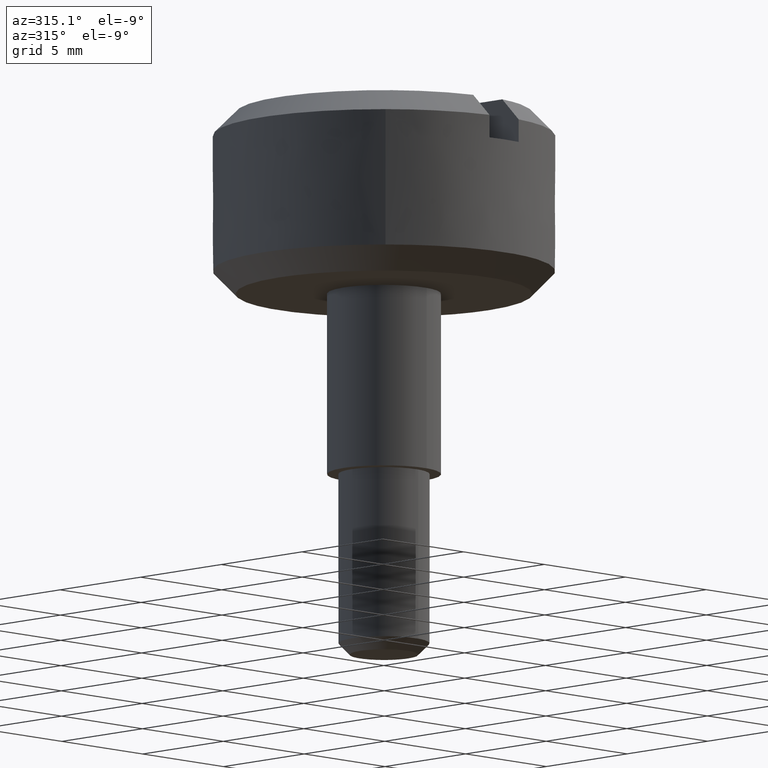
[diagram: clean part render]
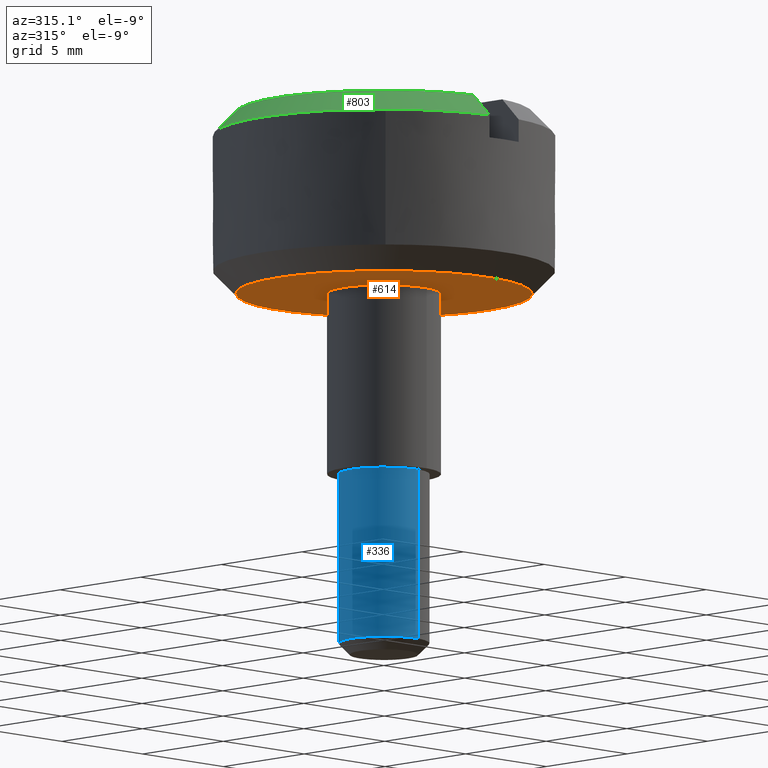
[diagram: same view with three faces highlighted in distinct colors, each labeled with its STEP entity id]
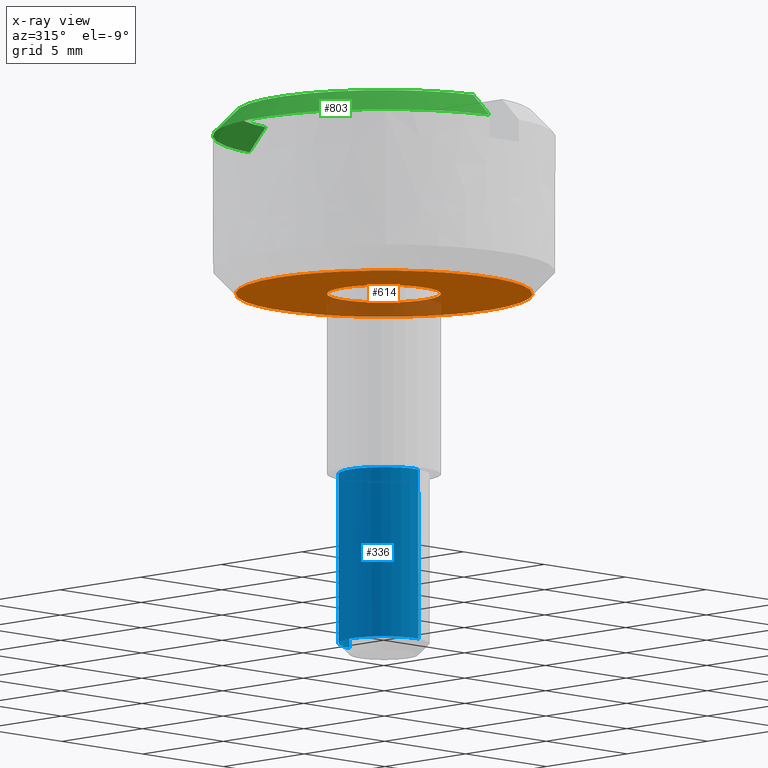
[diagram: x-ray of the same camera — body ghosted, the three highlighted faces saturated]
A machine part, auxiliary view with three faces highlighted in distinct colors.
The next image is the same camera in x-ray (body ghosted, the three faces saturated) — at least one of them is partly hidden behind the body in this view.
Their STEP definitions:

[orange] entity #614 — the highlighted face is a freeform B-spline surface patch.
#433=CARTESIAN_POINT('',(-0.152621348860034,2.495336996053319,-8.420209E-013));
#434=VERTEX_POINT('',#433);
#435=CARTESIAN_POINT('',(2.500000000000029,0.0,0.0));
#436=VERTEX_POINT('',#435);
#437=CARTESIAN_POINT('',(-0.152621348860034,2.495336996053319,-8.420209E-013));
#438=CARTESIAN_POINT('',(-0.076381908257961,2.500000000000051,-8.299206E-013));
#439=CARTESIAN_POINT('',(-2.126242E-014,2.500000000000050,-8.170575E-013));
#440=CARTESIAN_POINT('',(2.500000000000028,2.500000000000050,-3.960471E-013));
#441=CARTESIAN_POINT('',(2.500000000000029,0.0,0.0));
#449=(BOUNDED_CURVE()B_SPLINE_CURVE(2,(#437,#438,#439,#440,#441),.UNSPECIFIED.,.F.,.U.)B_SPLINE_CURVE_WITH_KNOTS((3,2,3),(0.239332962240387,0.250000000000000,0.500000000000000),.UNSPECIFIED.)CURVE()GEOMETRIC_REPRESENTATION_ITEM()RATIONAL_B_SPLINE_CURVE((0.976072041669813,0.987502787901529,1.0,0.707106781186548,1.0))REPRESENTATION_ITEM(''));
#450=EDGE_CURVE('',#434,#436,#449,.T.);
#452=CARTESIAN_POINT('',(0.152621348859991,-2.495336996053318,-8.403058E-013));
#453=VERTEX_POINT('',#452);
#454=CARTESIAN_POINT('',(2.500000000000029,0.0,0.0));
#455=CARTESIAN_POINT('',(2.500000000000029,-2.351765167242692,-7.920681E-013));
#456=CARTESIAN_POINT('',(0.152621348859992,-2.495336996053319,-8.404227E-013));
#464=(BOUNDED_CURVE()B_SPLINE_CURVE(2,(#454,#455,#456),.UNSPECIFIED.,.F.,.U.)B_SPLINE_CURVE_WITH_KNOTS((3,3),(0.500000000000000,0.739332962240387),.UNSPECIFIED.)CURVE()GEOMETRIC_REPRESENTATION_ITEM()RATIONAL_B_SPLINE_CURVE((1.0,0.719603993285018,0.976072041669813))REPRESENTATION_ITEM(''));
#465=EDGE_CURVE('',#436,#453,#464,.T.);
#500=CARTESIAN_POINT('',(-2.500000000000071,0.0,-8.419931E-013));
#501=VERTEX_POINT('',#500);
#502=CARTESIAN_POINT('',(-2.500000000000071,0.0,-8.419931E-013));
#503=CARTESIAN_POINT('',(-2.500000000000072,2.351765167242692,-8.419931E-013));
#504=CARTESIAN_POINT('',(-0.152621348860034,2.495336996053318,-8.419931E-013));
#512=(BOUNDED_CURVE()B_SPLINE_CURVE(2,(#502,#503,#504),.UNSPECIFIED.,.F.,.U.)B_SPLINE_CURVE_WITH_KNOTS((3,3),(0.0,0.239332962240387),.UNSPECIFIED.)CURVE()GEOMETRIC_REPRESENTATION_ITEM()RATIONAL_B_SPLINE_CURVE((1.0,0.719603993285018,0.976072041669813))REPRESENTATION_ITEM(''));
#513=EDGE_CURVE('',#501,#434,#512,.T.);
#519=CARTESIAN_POINT('',(0.152621348859992,-2.495336996053319,-8.404227E-013));
#520=CARTESIAN_POINT('',(0.076381908257919,-2.500000000000049,-8.419931E-013));
#521=CARTESIAN_POINT('',(-2.131628E-014,-2.500000000000050,-8.419931E-013));
#522=CARTESIAN_POINT('',(-2.500000000000071,-2.500000000000050,-8.419931E-013));
#523=CARTESIAN_POINT('',(-2.500000000000071,0.0,-8.419931E-013));
#531=(BOUNDED_CURVE()B_SPLINE_CURVE(2,(#519,#520,#521,#522,#523),.UNSPECIFIED.,.F.,.U.)B_SPLINE_CURVE_WITH_KNOTS((3,2,3),(0.739332962240387,0.750000000000000,1.0),.UNSPECIFIED.)CURVE()GEOMETRIC_REPRESENTATION_ITEM()RATIONAL_B_SPLINE_CURVE((0.976072041669813,0.987502787901529,1.0,0.707106781186548,1.0))REPRESENTATION_ITEM(''));
#532=EDGE_CURVE('',#453,#501,#531,.T.);
#537=CARTESIAN_POINT('',(7.149349974803454,-7.147365892724535,-1.515232E-012));
#538=CARTESIAN_POINT('',(-7.149350323490671,-7.147365892724535,-1.515232E-012));
#539=CARTESIAN_POINT('',(7.149349974803454,7.147366241411707,-1.515232E-012));
#540=CARTESIAN_POINT('',(-7.149350323490671,7.147366241411707,-1.515232E-012));
#541=B_SPLINE_SURFACE_WITH_KNOTS('',1,1,((#537,#539),(#538,#540)),.UNSPECIFIED.,.F.,.F.,.U.,(2,2),(2,2),(0.0,14.298700298294129),(0.0,14.294732134136240),.UNSPECIFIED.);
#542=CARTESIAN_POINT('',(-6.500000000000021,0.0,-2.188472E-012));
#543=VERTEX_POINT('',#542);
#544=CARTESIAN_POINT('',(-0.509984122261655,6.479962669266916,1.796362E-012));
#545=VERTEX_POINT('',#544);
#546=CARTESIAN_POINT('',(-6.500000000000021,0.0,-2.188472E-012));
#547=CARTESIAN_POINT('',(-6.500000000000178,6.008538195752123,-1.960550E-013));
#548=CARTESIAN_POINT('',(-0.509984122261655,6.479962669266916,1.796362E-012));
#556=(BOUNDED_CURVE()B_SPLINE_CURVE(2,(#546,#547,#548),.UNSPECIFIED.,.F.,.U.)B_SPLINE_CURVE_WITH_KNOTS((3,3),(0.0,0.236331300631965),.UNSPECIFIED.)CURVE()GEOMETRIC_REPRESENTATION_ITEM()RATIONAL_B_SPLINE_CURVE((1.0,0.723120658606137,0.969723356170141))REPRESENTATION_ITEM(''));
#557=EDGE_CURVE('',#543,#545,#556,.T.);
#558=ORIENTED_EDGE('',*,*,#557,.T.);
#559=CARTESIAN_POINT('',(6.499999999999978,0.0,0.0));
#560=VERTEX_POINT('',#559);
#561=CARTESIAN_POINT('',(-0.509984122261655,6.479962669266916,1.796362E-012));
#562=CARTESIAN_POINT('',(-0.255385695565416,6.500000000003901,1.763740E-012));
#563=CARTESIAN_POINT('',(-3.223495E-013,6.500000000003821,1.728451E-012));
#564=CARTESIAN_POINT('',(6.499999999999832,6.500000000001836,8.302698E-013));
#565=CARTESIAN_POINT('',(6.499999999999978,0.0,0.0));
#573=(BOUNDED_CURVE()B_SPLINE_CURVE(2,(#561,#562,#563,#564,#565),.UNSPECIFIED.,.F.,.U.)B_SPLINE_CURVE_WITH_KNOTS((3,2,3),(0.236331300631965,0.250000000000000,0.500000000000000),.UNSPECIFIED.)CURVE()GEOMETRIC_REPRESENTATION_ITEM()RATIONAL_B_SPLINE_CURVE((0.969723356170141,0.983986122580411,1.0,0.707106781186547,1.0))REPRESENTATION_ITEM(''));
#574=EDGE_CURVE('',#545,#560,#573,.T.);
#575=ORIENTED_EDGE('',*,*,#574,.T.);
#576=CARTESIAN_POINT('',(0.509984122261611,-6.479962669266918,1.801544E-012));
#577=VERTEX_POINT('',#576);
#578=CARTESIAN_POINT('',(6.499999999999978,0.0,0.0));
#579=CARTESIAN_POINT('',(6.500000000000133,-6.008538195752124,-3.136764E-014));
#580=CARTESIAN_POINT('',(0.509984122261611,-6.479962669266918,1.801544E-012));
#588=(BOUNDED_CURVE()B_SPLINE_CURVE(2,(#578,#579,#580),.UNSPECIFIED.,.F.,.U.)B_SPLINE_CURVE_WITH_KNOTS((3,3),(0.500000000000000,0.736331300631965),.UNSPECIFIED.)CURVE()GEOMETRIC_REPRESENTATION_ITEM()RATIONAL_B_SPLINE_CURVE((1.0,0.723120658606137,0.969723356170141))REPRESENTATION_ITEM(''));
#589=EDGE_CURVE('',#560,#577,#588,.T.);
#590=ORIENTED_EDGE('',*,*,#589,.T.);
#591=CARTESIAN_POINT('',(0.509984122261611,-6.479962669266918,1.801544E-012));
#592=CARTESIAN_POINT('',(0.255385695565373,-6.500000000003900,1.722463E-012));
#593=CARTESIAN_POINT('',(2.808920E-013,-6.500000000003823,1.644211E-012));
#594=CARTESIAN_POINT('',(-6.499999999999876,-6.500000000001837,-3.474234E-013));
#595=CARTESIAN_POINT('',(-6.500000000000021,0.0,-2.188472E-012));
#603=(BOUNDED_CURVE()B_SPLINE_CURVE(2,(#591,#592,#593,#594,#595),.UNSPECIFIED.,.F.,.U.)B_SPLINE_CURVE_WITH_KNOTS((3,2,3),(0.736331300631965,0.750000000000000,1.0),.UNSPECIFIED.)CURVE()GEOMETRIC_REPRESENTATION_ITEM()RATIONAL_B_SPLINE_CURVE((0.969723356170141,0.983986122580411,1.0,0.707106781186547,1.0))REPRESENTATION_ITEM(''));
#604=EDGE_CURVE('',#577,#543,#603,.T.);
#605=ORIENTED_EDGE('',*,*,#604,.T.);
#606=EDGE_LOOP('',(#558,#575,#590,#605));
#607=FACE_OUTER_BOUND('',#606,.T.);
#608=ORIENTED_EDGE('',*,*,#465,.F.);
#609=ORIENTED_EDGE('',*,*,#450,.F.);
#610=ORIENTED_EDGE('',*,*,#513,.F.);
#611=ORIENTED_EDGE('',*,*,#532,.F.);
#612=EDGE_LOOP('',(#608,#609,#610,#611));
#613=FACE_BOUND('',#612,.T.);
#614=ADVANCED_FACE('',(#607,#613),#541,.T.);

[blue] entity #336 — the highlighted face is a freeform B-spline surface patch.
#99=CARTESIAN_POINT('',(-2.000000000000071,0.0,-15.500000000000000));
#100=VERTEX_POINT('',#99);
#101=CARTESIAN_POINT('',(-0.139507635304126,1.995052132157174,-15.499999999989200));
#102=VERTEX_POINT('',#101);
#103=CARTESIAN_POINT('',(-2.000000000000071,0.0,-15.500000000000000));
#104=CARTESIAN_POINT('',(-1.991294721883276,1.849389715588892,-15.499999999994600));
#105=CARTESIAN_POINT('',(-0.139507635304126,1.995052132157174,-15.499999999989203));
#113=(BOUNDED_CURVE()B_SPLINE_CURVE(2,(#103,#104,#105),.UNSPECIFIED.,.F.,.U.)B_SPLINE_CURVE_WITH_KNOTS((3,3),(0.0,0.236331300625721),.UNSPECIFIED.)CURVE()GEOMETRIC_REPRESENTATION_ITEM()RATIONAL_B_SPLINE_CURVE((1.0,0.723120658613452,0.969723356157110))REPRESENTATION_ITEM(''));
#114=EDGE_CURVE('',#100,#102,#113,.T.);
#123=CARTESIAN_POINT('',(0.139507635304083,-1.995052132157174,-15.499999999989200));
#124=VERTEX_POINT('',#123);
#130=CARTESIAN_POINT('',(0.139507635304083,-1.995052132157174,-15.499999999989203));
#131=CARTESIAN_POINT('',(0.069836313272955,-1.999925268562704,-15.499999999989381));
#132=CARTESIAN_POINT('',(-0.000005132977601,-1.999926594999492,-15.499999999989569));
#133=CARTESIAN_POINT('',(-2.000002476865100,-1.999964579179300,-15.499999999994987));
#134=CARTESIAN_POINT('',(-2.000000000000071,0.0,-15.500000000000000));
#142=(BOUNDED_CURVE()B_SPLINE_CURVE(2,(#130,#131,#132,#133,#134),.UNSPECIFIED.,.F.,.U.)B_SPLINE_CURVE_WITH_KNOTS((3,2,3),(0.737829682993436,0.750000000000000,1.0),.UNSPECIFIED.)CURVE()GEOMETRIC_REPRESENTATION_ITEM()RATIONAL_B_SPLINE_CURVE((0.972871408701556,0.985741586711870,1.0,0.707106781186547,1.0))REPRESENTATION_ITEM(''));
#143=EDGE_CURVE('',#124,#100,#142,.T.);
#229=CARTESIAN_POINT('',(-0.122099686778643,1.996269437346055,-8.000000000000771));
#230=VERTEX_POINT('',#229);
#231=CARTESIAN_POINT('',(-0.122099686778643,1.996269437346055,-8.000000000000771));
#232=CARTESIAN_POINT('',(-0.139507635304126,1.995052132157174,-15.499999999989200));
#233=QUASI_UNIFORM_CURVE('',1,(#231,#232),.UNSPECIFIED.,.F.,.U.);
#234=EDGE_CURVE('',#230,#102,#233,.T.);
#253=CARTESIAN_POINT('',(0.122099686778600,-1.996269437346055,-8.000000000000771));
#254=VERTEX_POINT('',#253);
#268=CARTESIAN_POINT('',(0.122099686778600,-1.996269437346055,-8.000000000000771));
#269=CARTESIAN_POINT('',(0.139507635304083,-1.995052132157174,-15.499999999989200));
#270=QUASI_UNIFORM_CURVE('',1,(#268,#269),.UNSPECIFIED.,.F.,.U.);
#271=EDGE_CURVE('',#254,#124,#270,.T.);
#278=CARTESIAN_POINT('',(0.167405537429175,-1.993498412815539,-7.812500000000790));
#279=CARTESIAN_POINT('',(0.144858299918995,-1.994877460938816,-7.812500000000785));
#280=CARTESIAN_POINT('',(-1.874172517774088,-2.118366675913501,-7.812500000000787));
#281=CARTESIAN_POINT('',(-1.996269596843805,-0.122097079069717,-7.812500000000788));
#282=CARTESIAN_POINT('',(-2.118366675913522,1.874172517774067,-7.812500000000787));
#283=CARTESIAN_POINT('',(-0.107980552190247,1.997133000615157,-7.812500000000784));
#284=CARTESIAN_POINT('',(-0.093946480996461,1.997991361180748,-7.812500000000788));
#285=CARTESIAN_POINT('',(0.167405537429175,-1.993498412815539,-15.692187499999987));
#286=CARTESIAN_POINT('',(0.144858299918995,-1.994877460938816,-15.692187499999976));
#287=CARTESIAN_POINT('',(-1.874172517774088,-2.118366675913501,-15.692187499999976));
#288=CARTESIAN_POINT('',(-1.996269596843805,-0.122097079069717,-15.692187499999980));
#289=CARTESIAN_POINT('',(-2.118366675913522,1.874172517774067,-15.692187499999976));
#290=CARTESIAN_POINT('',(-0.107980552190247,1.997133000615157,-15.692187499999971));
#291=CARTESIAN_POINT('',(-0.093946480996461,1.997991361180748,-15.692187499999987));
#299=(BOUNDED_SURFACE()B_SPLINE_SURFACE(2,1,((#278,#285),(#279,#286),(#280,#287),(#281,#288),(#282,#289),(#283,#290),(#284,#291)),.UNSPECIFIED.,.F.,.F.,.U.)B_SPLINE_SURFACE_WITH_KNOTS((3,1,2,1,3),(2,2),(0.0,0.053686069553978,3.367394568538821,6.681103067523664,6.714339310210055),(0.0,7.879687499999196),.UNSPECIFIED.)GEOMETRIC_REPRESENTATION_ITEM()RATIONAL_B_SPLINE_SURFACE(((1.009490445959217,1.009490445959217),(1.004745222979609,1.004745222979609),(0.707106781186548,0.707106781186548),(1.0,1.0),(0.707106781186548,0.707106781186548),(1.002937696573089,1.002937696573089),(1.005875393146177,1.005875393146177)))REPRESENTATION_ITEM('')SURFACE());
#300=ORIENTED_EDGE('',*,*,#234,.T.);
#301=ORIENTED_EDGE('',*,*,#114,.F.);
#302=ORIENTED_EDGE('',*,*,#143,.F.);
#303=ORIENTED_EDGE('',*,*,#271,.F.);
#304=CARTESIAN_POINT('',(-2.000000000000071,0.0,-8.000000000000771));
#305=VERTEX_POINT('',#304);
#306=CARTESIAN_POINT('',(0.122099686778600,-1.996269437346055,-8.000000000000771));
#307=CARTESIAN_POINT('',(0.061106834107519,-1.999999999998371,-8.000000000000773));
#308=CARTESIAN_POINT('',(-1.229064E-013,-1.999999999998397,-8.000000000000773));
#309=CARTESIAN_POINT('',(-2.000000000000120,-1.999999999999249,-8.000000000000773));
#310=CARTESIAN_POINT('',(-2.000000000000071,0.0,-8.000000000000771));
#318=(BOUNDED_CURVE()B_SPLINE_CURVE(2,(#306,#307,#308,#309,#310),.UNSPECIFIED.,.F.,.U.)B_SPLINE_CURVE_WITH_KNOTS((3,2,3),(0.739332736845696,0.750000000000000,1.0),.UNSPECIFIED.)CURVE()GEOMETRIC_REPRESENTATION_ITEM()RATIONAL_B_SPLINE_CURVE((0.976071558606561,0.987502523835223,1.0,0.707106781186547,1.0))REPRESENTATION_ITEM(''));
#319=EDGE_CURVE('',#254,#305,#318,.T.);
#320=ORIENTED_EDGE('',*,*,#319,.T.);
#321=CARTESIAN_POINT('',(-2.000000000000071,0.0,-8.000000000000771));
#322=CARTESIAN_POINT('',(-2.000000000000020,1.881409671547641,-8.000000000000773));
#323=CARTESIAN_POINT('',(-0.122099686778643,1.996269437346055,-8.000000000000771));
#331=(BOUNDED_CURVE()B_SPLINE_CURVE(2,(#321,#322,#323),.UNSPECIFIED.,.F.,.U.)B_SPLINE_CURVE_WITH_KNOTS((3,3),(0.0,0.239332736845696),.UNSPECIFIED.)CURVE()GEOMETRIC_REPRESENTATION_ITEM()RATIONAL_B_SPLINE_CURVE((1.0,0.719604257351324,0.976071558606561))REPRESENTATION_ITEM(''));
#332=EDGE_CURVE('',#305,#230,#331,.T.);
#333=ORIENTED_EDGE('',*,*,#332,.T.);
#334=EDGE_LOOP('',(#300,#301,#302,#303,#320,#333));
#335=FACE_OUTER_BOUND('',#334,.T.);
#336=ADVANCED_FACE('',(#335),#299,.T.);

[green] entity #803 — the highlighted face is a freeform B-spline surface patch.
#622=CARTESIAN_POINT('',(-0.900000000000027,7.445804187594560,6.999999999997391));
#623=VERTEX_POINT('',#622);
#629=CARTESIAN_POINT('',(-0.900000000000027,6.437390775771970,7.999999999997700));
#630=VERTEX_POINT('',#629);
#631=CARTESIAN_POINT('',(-0.900000000000027,7.445804187594560,6.999999999997391));
#632=CARTESIAN_POINT('',(-0.900000000000027,7.109850583502577,7.333519141446305));
#633=CARTESIAN_POINT('',(-0.900000000000027,6.773750285482231,7.666890308168059));
#634=CARTESIAN_POINT('',(-0.900000000000027,6.437390775771970,7.999999999997700));
#635=B_SPLINE_CURVE_WITH_KNOTS('',3,(#631,#632,#633,#634),.UNSPECIFIED.,.F.,.U.,(4,4),(0.0,0.070808166643140),.UNSPECIFIED.);
#636=EDGE_CURVE('',#623,#630,#635,.T.);
#638=CARTESIAN_POINT('',(-0.900000000000027,-6.437390775772660,8.000000000000330));
#639=VERTEX_POINT('',#638);
#645=CARTESIAN_POINT('',(-0.900000000000027,-7.445804187594570,6.999999999997380));
#646=VERTEX_POINT('',#645);
#647=CARTESIAN_POINT('',(-0.900000000000027,-6.437390775772660,8.000000000000330));
#648=CARTESIAN_POINT('',(-0.900000000000027,-6.773750161947216,7.666890425772100));
#649=CARTESIAN_POINT('',(-0.900000000000027,-7.109850490492800,7.333519248876280));
#650=CARTESIAN_POINT('',(-0.900000000000027,-7.445804187594570,6.999999999997380));
#651=B_SPLINE_CURVE_WITH_KNOTS('',3,(#647,#648,#649,#650),.UNSPECIFIED.,.F.,.U.,(4,4),(0.929162089459579,1.0),.UNSPECIFIED.);
#652=EDGE_CURVE('',#639,#646,#651,.T.);
#719=CARTESIAN_POINT('',(-0.900000000000027,-6.437390775772660,8.000000000000330));
#720=CARTESIAN_POINT('',(-1.164047159276238,-6.400482808678095,8.000000000000201));
#721=CARTESIAN_POINT('',(-1.687587838249358,-6.294108253978422,7.999999999999965));
#722=CARTESIAN_POINT('',(-2.435870798614686,-6.043238327347011,7.999999999999608));
#723=CARTESIAN_POINT('',(-3.214326217083384,-5.673205633604002,7.999999999999251));
#724=CARTESIAN_POINT('',(-4.027366416843102,-5.139638750141832,7.999999999998845));
#725=CARTESIAN_POINT('',(-4.724338078900701,-4.495818033796238,7.999999999998596));
#726=CARTESIAN_POINT('',(-5.208135261631244,-3.903781118246386,7.999999999998288));
#727=CARTESIAN_POINT('',(-5.582366590741799,-3.351684227360256,7.999999999998127));
#728=CARTESIAN_POINT('',(-5.974684702140021,-2.625036571034016,7.999999999997995));
#729=CARTESIAN_POINT('',(-6.300390684119401,-1.707749896026585,7.999999999997671));
#730=CARTESIAN_POINT('',(-6.462877620411041,-0.823562934463634,7.999999999997905));
#731=CARTESIAN_POINT('',(-6.517480665100312,0.023957214605705,7.999999999997415));
#732=CARTESIAN_POINT('',(-6.470390909309578,0.788331480987488,7.999999999997747));
#733=CARTESIAN_POINT('',(-6.314401125327738,1.598575614218152,7.999999999997815));
#734=CARTESIAN_POINT('',(-6.050783176171725,2.444827095877732,7.999999999997491));
#735=CARTESIAN_POINT('',(-5.681092151179661,3.198833017271690,7.999999999998009));
#736=CARTESIAN_POINT('',(-5.190481524745288,3.935830146604961,7.999999999996987));
#737=CARTESIAN_POINT('',(-4.752563333565737,4.456637287679189,7.999999999998058));
#738=CARTESIAN_POINT('',(-4.142491201614249,5.029747307688385,7.999999999997533));
#739=CARTESIAN_POINT('',(-3.506005130055947,5.497656543903021,7.999999999997868));
#740=CARTESIAN_POINT('',(-2.833558538158969,5.862271089679829,7.999999999997383));
#741=CARTESIAN_POINT('',(-1.994418853604011,6.213329914923008,7.999999999998912));
#742=CARTESIAN_POINT('',(-1.368100583673093,6.372036070872326,7.999999999995317));
#743=CARTESIAN_POINT('',(-0.900000000000027,6.437390775771970,7.999999999997700));
#744=B_SPLINE_CURVE_WITH_KNOTS('',3,(#719,#720,#721,#722,#723,#724,#725,#726,#727,#728,#729,#730,#731,#732,#733,#734,#735,#736,#737,#738,#739,#740,#741,#742,#743),.UNSPECIFIED.,.F.,.U.,(4,1,1,1,1,1,1,1,1,1,1,1,1,1,1,1,1,1,1,1,1,1,4),(0.000000024161348,0.799842489403279,1.599687473984336,2.363178146622577,3.381163256419885,4.508217718454189,5.198995217117382,5.671630920660629,6.507837288633635,7.671241821314473,8.580161070661593,9.198231879725142,10.216189347488079,10.870618237372669,11.670465744644030,12.870229296968560,13.379223595747691,14.324497476765179,14.906206454662611,15.887834280108610,16.687676822934609,17.196679448044861,18.614574840735450),.UNSPECIFIED.);
#745=EDGE_CURVE('',#639,#630,#744,.T.);
#750=CARTESIAN_POINT('',(-0.520177643334407,6.454071600108987,8.025000000000404));
#751=CARTESIAN_POINT('',(-0.604580984883470,7.501300785420066,6.974374999997305));
#752=CARTESIAN_POINT('',(-6.591561953800680,5.964737335155623,8.025000000000404));
#753=CARTESIAN_POINT('',(-7.661100143412580,6.932567785004386,6.974374999997305));
#754=CARTESIAN_POINT('',(-6.473789540999350,-0.125195761933080,8.025000000000404));
#755=CARTESIAN_POINT('',(-7.524218133514752,-0.145509861914766,6.974374999997305));
#756=CARTESIAN_POINT('',(-6.356017128198021,-6.215128859021784,8.025000000000404));
#757=CARTESIAN_POINT('',(-7.387336123616922,-7.223587508833918,6.974374999997305));
#758=CARTESIAN_POINT('',(-0.270253150133713,-6.469357636952925,8.025000000000404));
#759=CARTESIAN_POINT('',(-0.314104071502093,-7.519067114535698,6.974374999997305));
#767=(BOUNDED_SURFACE()B_SPLINE_SURFACE(1,2,((#750,#752,#754,#756,#758),(#751,#753,#755,#757,#759)),.UNSPECIFIED.,.F.,.F.,.U.)B_SPLINE_SURFACE_WITH_KNOTS((2,2),(3,2,3),(0.0,1.0),(0.0,11.933619185760140,23.867238371520280),.UNSPECIFIED.)GEOMETRIC_REPRESENTATION_ITEM()RATIONAL_B_SPLINE_SURFACE(((1.0,0.728370969882400,1.0,0.728370969882400,1.0),(1.0,0.728370969882400,1.0,0.728370969882400,1.0)))REPRESENTATION_ITEM('')SURFACE());
#768=ORIENTED_EDGE('',*,*,#636,.F.);
#769=CARTESIAN_POINT('',(-5.246736126367376,-5.359268608706941,6.999999999997387));
#770=VERTEX_POINT('',#769);
#771=CARTESIAN_POINT('',(-5.246736126367390,-5.359268608706954,6.999999999997386));
#772=CARTESIAN_POINT('',(-7.500000000000022,-3.153318164495249,6.999999999997390));
#773=CARTESIAN_POINT('',(-7.500000000000021,0.0,6.999999999997391));
#774=CARTESIAN_POINT('',(-7.500000000000022,6.648039453209386,6.999999999997391));
#775=CARTESIAN_POINT('',(-0.900000000000023,7.445804187594514,6.999999999997391));
#783=(BOUNDED_CURVE()B_SPLINE_CURVE(2,(#771,#772,#773,#774,#775),.UNSPECIFIED.,.F.,.U.)B_SPLINE_CURVE_WITH_KNOTS((3,2,3),(0.226679136802261,0.500000000000000,1.0),.UNSPECIFIED.)CURVE()GEOMETRIC_REPRESENTATION_ITEM()RATIONAL_B_SPLINE_CURVE((0.875260723575286,0.862427484301822,1.0,0.748331477354788,1.0))REPRESENTATION_ITEM(''));
#784=EDGE_CURVE('',#770,#623,#783,.T.);
#785=ORIENTED_EDGE('',*,*,#784,.F.);
#786=CARTESIAN_POINT('',(-0.900000000000027,-7.445804187594570,6.999999999997380));
#787=CARTESIAN_POINT('',(-3.427509727349847,-7.140295380580146,6.999999999997383));
#788=CARTESIAN_POINT('',(-5.246736126367390,-5.359268608706954,6.999999999997386));
#796=(BOUNDED_CURVE()B_SPLINE_CURVE(2,(#786,#787,#788),.UNSPECIFIED.,.F.,.U.)B_SPLINE_CURVE_WITH_KNOTS((3,3),(0.0,0.226679136802261),.UNSPECIFIED.)CURVE()GEOMETRIC_REPRESENTATION_ITEM()RATIONAL_B_SPLINE_CURVE((1.0,0.885903993052966,0.875260723575286))REPRESENTATION_ITEM(''));
#797=EDGE_CURVE('',#646,#770,#796,.T.);
#798=ORIENTED_EDGE('',*,*,#797,.F.);
#799=ORIENTED_EDGE('',*,*,#652,.F.);
#800=ORIENTED_EDGE('',*,*,#745,.T.);
#801=EDGE_LOOP('',(#768,#785,#798,#799,#800));
#802=FACE_OUTER_BOUND('',#801,.T.);
#803=ADVANCED_FACE('',(#802),#767,.T.);